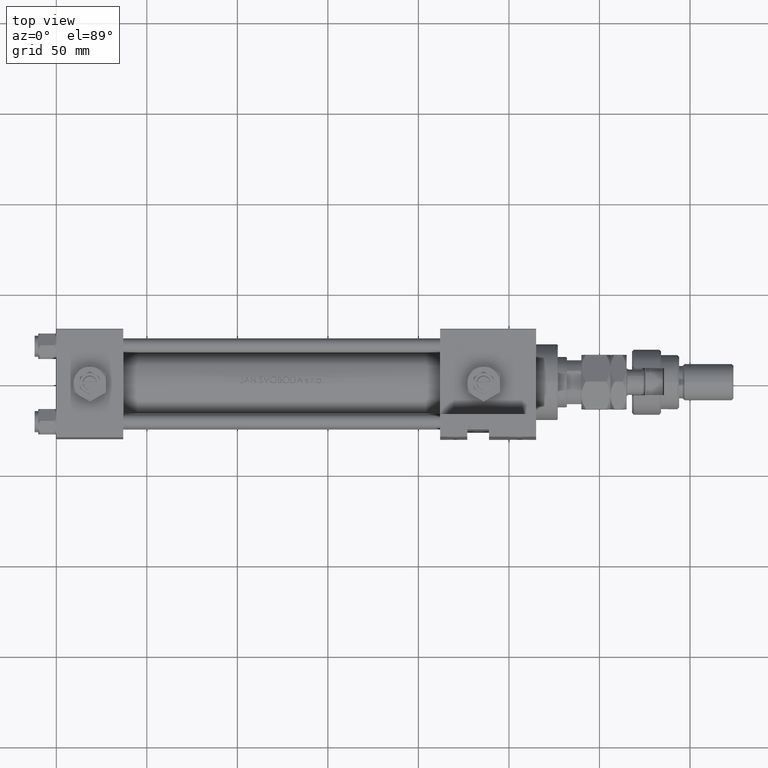
[diagram: clean part render]
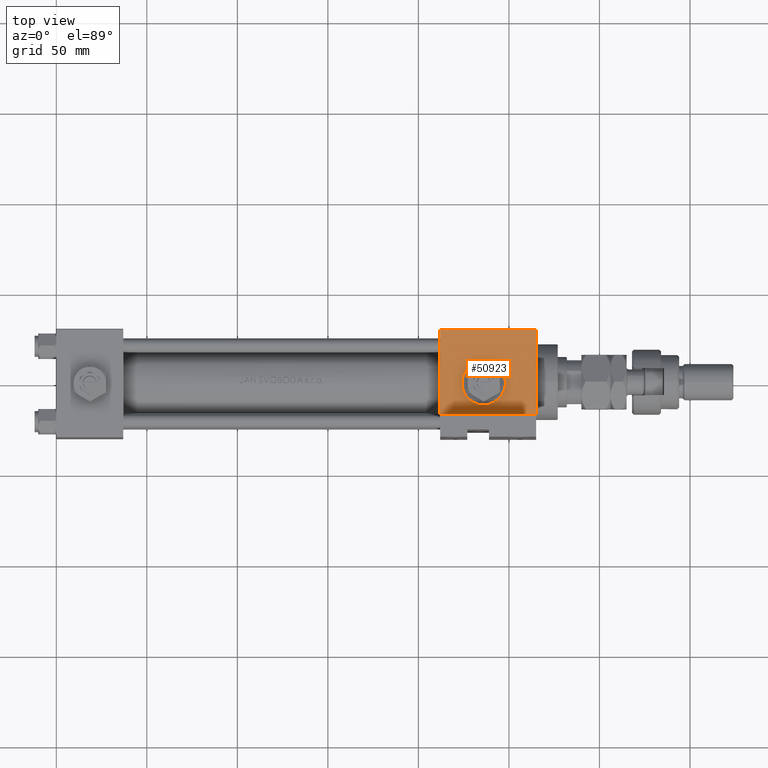
[diagram: same view with one face highlighted and labeled with its STEP entity id]
A machine part, top view. The second image highlights one B-rep face of the part: STEP entity #50923.
In plain terms, the highlighted planar face has unit normal (0, 0, -1).
Its self-contained STEP definition (entity closure, byte-faithful):
#305 = VECTOR ( 'NONE', #14388, 1000.000000000000000 ) ;
#2570 = CARTESIAN_POINT ( 'NONE',  ( 236.0000000000000000, -30.00000000000000000, 0.000000000000000000 ) ) ;
#3080 = CARTESIAN_POINT ( 'NONE',  ( 212.0000000000000000, -30.00000000000000000, -17.49999999999999645 ) ) ;
#5228 = DIRECTION ( 'NONE',  ( -1.000000000000000000, 0.000000000000000000, 0.000000000000000000 ) ) ;
#6788 = CARTESIAN_POINT ( 'NONE',  ( 212.0000000000000000, -30.00000000000000000, 29.99999999999999289 ) ) ;
#7232 = VERTEX_POINT ( 'NONE', #28378 ) ;
#7707 = CIRCLE ( 'NONE', #25113, 12.00000000000000533 ) ;
#7730 = DIRECTION ( 'NONE',  ( 0.000000000000000000, 0.000000000000000000, -1.000000000000000000 ) ) ;
#10346 = VERTEX_POINT ( 'NONE', #49828 ) ;
#10995 = EDGE_CURVE ( 'NONE', #12459, #7232, #43100, .T. ) ;
#11022 = VECTOR ( 'NONE', #5228, 1000.000000000000000 ) ;
#11693 = FACE_BOUND ( 'NONE', #22143, .T. ) ;
#11801 = DIRECTION ( 'NONE',  ( 0.000000000000000000, -1.000000000000000000, -8.673617379884036705E-17 ) ) ;
#12304 = DIRECTION ( 'NONE',  ( 1.000000000000000000, -2.618450529776311274E-16, 0.000000000000000000 ) ) ;
#12459 = VERTEX_POINT ( 'NONE', #31058 ) ;
#14388 = DIRECTION ( 'NONE',  ( 0.000000000000000000, 0.000000000000000000, -1.000000000000000000 ) ) ;
#18312 = VERTEX_POINT ( 'NONE', #28254 ) ;
#18924 = CARTESIAN_POINT ( 'NONE',  ( 265.0000000000000000, -30.00000000000000000, 29.99999999999999289 ) ) ;
#19099 = DIRECTION ( 'NONE',  ( 0.000000000000000000, -1.000000000000000000, -8.673617379884036705E-17 ) ) ;
#19610 = LINE ( 'NONE', #3080, #20468 ) ;
#20468 = VECTOR ( 'NONE', #12304, 1000.000000000000000 ) ;
#21682 = VECTOR ( 'NONE', #23262, 1000.000000000000000 ) ;
#22019 = CARTESIAN_POINT ( 'NONE',  ( 265.0000000000000000, -30.00000000000000000, 29.50000000000001776 ) ) ;
#22143 = EDGE_LOOP ( 'NONE', ( #42441, #50239 ) ) ;
#23262 = DIRECTION ( 'NONE',  ( 0.000000000000000000, 0.000000000000000000, -1.000000000000000000 ) ) ;
#24159 = FACE_OUTER_BOUND ( 'NONE', #27038, .T. ) ;
#24432 = CARTESIAN_POINT ( 'NONE',  ( 265.0000000000000000, -30.00000000000000000, 29.99999999999999289 ) ) ;
#25113 = AXIS2_PLACEMENT_3D ( 'NONE', #33347, #11801, #7730 ) ;
#26468 = EDGE_CURVE ( 'NONE', #10346, #44413, #35456, .T. ) ;
#26723 = ORIENTED_EDGE ( 'NONE', *, *, #42194, .T. ) ;
#27038 = EDGE_LOOP ( 'NONE', ( #41897, #34229, #50480, #26723 ) ) ;
#27665 = CARTESIAN_POINT ( 'NONE',  ( 236.0000000000000000, -30.00000000000000000, 12.00000000000000533 ) ) ;
#28218 = DIRECTION ( 'NONE',  ( -0.000000000000000000, 1.000000000000000000, 0.000000000000000000 ) ) ;
#28254 = CARTESIAN_POINT ( 'NONE',  ( 236.0000000000000000, -30.00000000000000000, -12.00000000000000533 ) ) ;
#28378 = CARTESIAN_POINT ( 'NONE',  ( 212.0000000000000000, -30.00000000000000000, -17.49999999999999645 ) ) ;
#30208 = EDGE_CURVE ( 'NONE', #18312, #53084, #42598, .T. ) ;
#30680 = LINE ( 'NONE', #22019, #11022 ) ;
#31058 = CARTESIAN_POINT ( 'NONE',  ( 212.0000000000000000, -30.00000000000000000, 29.50000000000001776 ) ) ;
#31537 = EDGE_CURVE ( 'NONE', #10346, #12459, #30680, .T. ) ;
#33347 = CARTESIAN_POINT ( 'NONE',  ( 236.0000000000000000, -30.00000000000000000, 0.000000000000000000 ) ) ;
#34229 = ORIENTED_EDGE ( 'NONE', *, *, #31537, .T. ) ;
#35456 = LINE ( 'NONE', #18924, #21682 ) ;
#39352 = EDGE_CURVE ( 'NONE', #53084, #18312, #7707, .T. ) ;
#41362 = CARTESIAN_POINT ( 'NONE',  ( 265.0000000000000000, -30.00000000000000000, -17.49999999999998224 ) ) ;
#41897 = ORIENTED_EDGE ( 'NONE', *, *, #26468, .F. ) ;
#42194 = EDGE_CURVE ( 'NONE', #7232, #44413, #19610, .T. ) ;
#42441 = ORIENTED_EDGE ( 'NONE', *, *, #30208, .F. ) ;
#42598 = CIRCLE ( 'NONE', #51239, 12.00000000000000533 ) ;
#43100 = LINE ( 'NONE', #6788, #305 ) ;
#44413 = VERTEX_POINT ( 'NONE', #41362 ) ;
#44745 = DIRECTION ( 'NONE',  ( 0.000000000000000000, -0.000000000000000000, 1.000000000000000000 ) ) ;
#45025 = PLANE ( 'NONE',  #48274 ) ;
#47830 = DIRECTION ( 'NONE',  ( 0.000000000000000000, 0.000000000000000000, -1.000000000000000000 ) ) ;
#48274 = AXIS2_PLACEMENT_3D ( 'NONE', #24432, #28218, #44745 ) ;
#49828 = CARTESIAN_POINT ( 'NONE',  ( 265.0000000000000000, -30.00000000000000000, 29.50000000000001776 ) ) ;
#50239 = ORIENTED_EDGE ( 'NONE', *, *, #39352, .F. ) ;
#50480 = ORIENTED_EDGE ( 'NONE', *, *, #10995, .T. ) ;
#50923 = ADVANCED_FACE ( 'NONE', ( #11693, #24159 ), #45025, .F. ) ;
#51239 = AXIS2_PLACEMENT_3D ( 'NONE', #2570, #19099, #47830 ) ;
#53084 = VERTEX_POINT ( 'NONE', #27665 ) ;